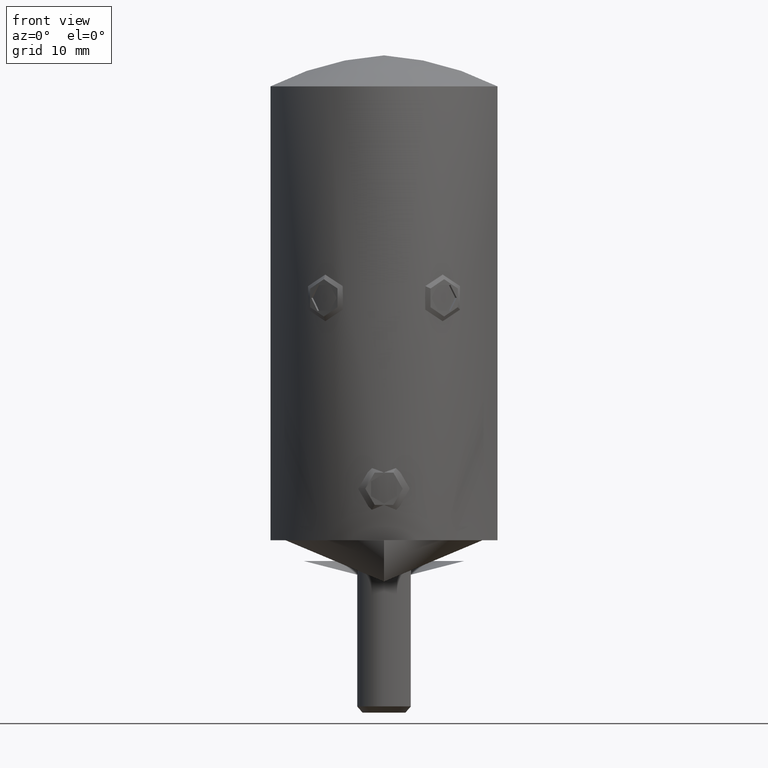
[diagram: clean part render]
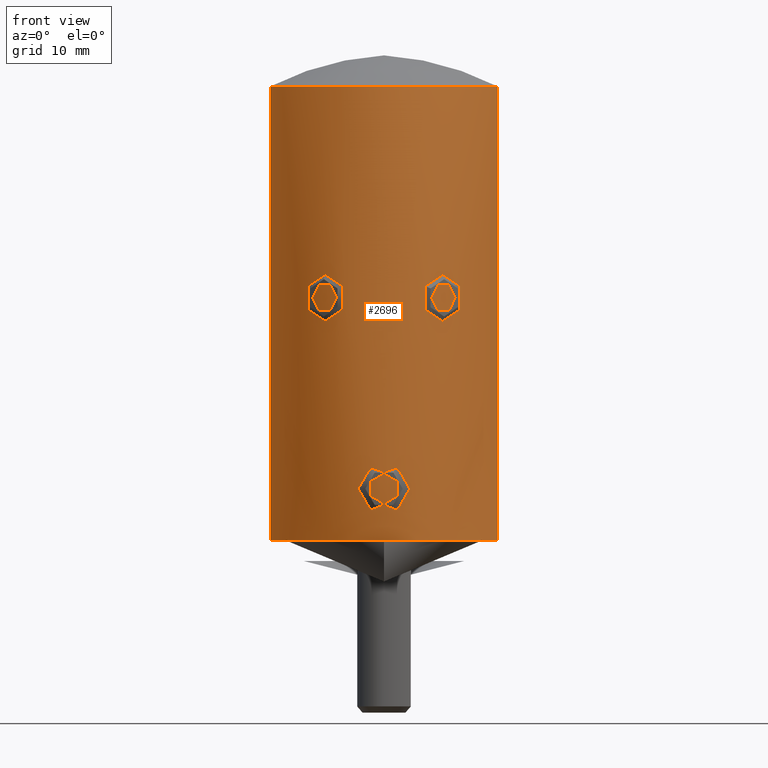
[diagram: same view with one face highlighted and labeled with its STEP entity id]
A machine part, front view. The second image highlights one B-rep face of the part: STEP entity #2696.
In plain terms, the highlighted cylindrical surface (partial cylindrical patch) has radius 11 mm, axis along (0, 0, 1).
Its self-contained STEP definition (entity closure, byte-faithful):
#122 = VECTOR ( 'NONE', #1411, 1000.000000000000000 ) ;
#220 = CARTESIAN_POINT ( 'NONE',  ( 7.561172679365780525, -7.989822004898798902, 22.28730717396087257 ) ) ;
#299 = CARTESIAN_POINT ( 'NONE',  ( 7.169889557207483222, -8.343046086140359918, 21.68007258375818580 ) ) ;
#318 = CARTESIAN_POINT ( 'NONE',  ( -9.473599840962538821, -5.592520689685467339, 20.82659574093291610 ) ) ;
#454 = CARTESIAN_POINT ( 'NONE',  ( 7.425485977138197136, -8.116079469822636838, 22.02587819796477575 ) ) ;
#481 = CARTESIAN_POINT ( 'NONE',  ( 1.893470199410739241, -10.83645095075712206, 6.594738271571696231 ) ) ;
#524 = CARTESIAN_POINT ( 'NONE',  ( 5.126284629233063939, -9.733679403188105539, 21.20864326718159987 ) ) ;
#556 = CARTESIAN_POINT ( 'NONE',  ( 9.996026330001591020, -4.597802995900677203, 18.08902729239647300 ) ) ;
#633 = EDGE_CURVE ( 'NONE', #10422, #9590, #19675, .T. ) ;
#636 = CARTESIAN_POINT ( 'NONE',  ( 9.268515488525329360, -5.925304606801424789, 22.25590857295209091 ) ) ;
#712 = CARTESIAN_POINT ( 'NONE',  ( 9.156399203532410880, -6.095947699353321703, 24.22077481556661027 ) ) ;
#786 = CARTESIAN_POINT ( 'NONE',  ( -10.19183751265292237, -4.145759157978439191, 17.23609329652746425 ) ) ;
#790 = CARTESIAN_POINT ( 'NONE',  ( 10.36683068439162625, -3.684211851886622036, 30.29007826215869059 ) ) ;
#850 = CARTESIAN_POINT ( 'NONE',  ( -5.548035723581857148, -9.499777870704122051, 21.10036188871868035 ) ) ;
#852 = CARTESIAN_POINT ( 'NONE',  ( 11.00000000000000000, 0.000000000000000000, 0.000000000000000000 ) ) ;
#867 = CARTESIAN_POINT ( 'NONE',  ( 10.95859947120640498, -0.9838684448568373320, 14.29336497675422102 ) ) ;
#942 = CARTESIAN_POINT ( 'NONE',  ( -10.93506435769343277, -1.214807806913861032, 14.37741290804189731 ) ) ;
#1060 = CARTESIAN_POINT ( 'NONE',  ( -9.397997172397694499, -5.717225328498642511, 27.39753572013948713 ) ) ;
#1116 = LINE ( 'NONE', #7931, #6016 ) ;
#1208 = CARTESIAN_POINT ( 'NONE',  ( -9.281883585321498487, -5.903502644170379732, 26.68170132992245769 ) ) ;
#1250 = CARTESIAN_POINT ( 'NONE',  ( -7.618544885495829533, -7.934854943584413789, 24.57324526187004565 ) ) ;
#1314 = EDGE_CURVE ( 'NONE', #16840, #2297, #16371, .T. ) ;
#1351 = CARTESIAN_POINT ( 'NONE',  ( -10.36679842674548091, -3.684352254798577864, 30.29002990219965241 ) ) ;
#1394 = CARTESIAN_POINT ( 'NONE',  ( -3.545061720958730955, -10.41309451578122669, 23.50000000000000000 ) ) ;
#1411 = DIRECTION ( 'NONE',  ( -0.000000000000000000, -0.000000000000000000, 1.000000000000000000 ) ) ;
#1457 = LINE ( 'NONE', #18378, #15074 ) ;
#1488 = CARTESIAN_POINT ( 'NONE',  ( 4.723918369463582678, -9.934956473674763089, 25.59595233828232708 ) ) ;
#1539 = CYLINDRICAL_SURFACE ( 'NONE', #1611, 10.99999999999999645 ) ;
#1556 = CARTESIAN_POINT ( 'NONE',  ( 3.545320702733750107, -10.41300634729819663, 23.81765462898348673 ) ) ;
#1561 = CARTESIAN_POINT ( 'NONE',  ( -2.495562452211262716, -10.71322910456391853, 4.683362971068643965 ) ) ;
#1611 = AXIS2_PLACEMENT_3D ( 'NONE', #8000, #20182, #21940 ) ;
#1634 = CARTESIAN_POINT ( 'NONE',  ( -2.430803093623571165, -10.72810763095610831, 5.628396886941443356 ) ) ;
#2059 = CARTESIAN_POINT ( 'NONE',  ( 2.495297978064271227, -10.71329013739203795, 4.682043413947125643 ) ) ;
#2180 = CARTESIAN_POINT ( 'NONE',  ( 6.501307959319777119, -8.874460939664617243, 21.20867836922007044 ) ) ;
#2292 = CARTESIAN_POINT ( 'NONE',  ( 10.43979944061768173, -3.468917546052637135, 16.23249284794687597 ) ) ;
#2297 = VERTEX_POINT ( 'NONE', #6674 ) ;
#2448 = CARTESIAN_POINT ( 'NONE',  ( 10.72101701489970793, -2.468618027424990480, 15.15792903129216640 ) ) ;
#2487 = CARTESIAN_POINT ( 'NONE',  ( 4.721090920942043745, -9.936299440259491078, 21.40577892336094123 ) ) ;
#2545 = CARTESIAN_POINT ( 'NONE',  ( 0.000000000000000000, 0.000000000000000000, 0.000000000000000000 ) ) ;
#2551 = AXIS2_PLACEMENT_3D ( 'NONE', #2545, #16592, #11030 ) ;
#2688 = CARTESIAN_POINT ( 'NONE',  ( -7.560285272163928205, -7.990662585836457943, 24.71466949281759540 ) ) ;
#2696 = ADVANCED_FACE ( 'NONE', ( #20042, #10258, #9714, #17883 ), #1539, .T. ) ;
#2734 = CARTESIAN_POINT ( 'NONE',  ( -4.355607442795515816, -10.10160472708712298, 21.68007258365323153 ) ) ;
#2831 = CARTESIAN_POINT ( 'NONE',  ( -7.805173626811875209, -7.751081515202911554, 23.50247619131340571 ) ) ;
#2855 = CARTESIAN_POINT ( 'NONE',  ( 10.99999999999999645, -1.613032863370915042E-15, 14.14600281952403371 ) ) ;
#2934 = CARTESIAN_POINT ( 'NONE',  ( -9.156734942247307885, -6.095426984534098480, 25.21871875238561600 ) ) ;
#2950 = EDGE_CURVE ( 'NONE', #3527, #10945, #22025, .T. ) ;
#3023 = ORIENTED_EDGE ( 'NONE', *, *, #4871, .T. ) ;
#3053 = CARTESIAN_POINT ( 'NONE',  ( -3.865003218402353724, -10.29904843937475079, 24.71000965126167870 ) ) ;
#3068 = B_SPLINE_CURVE_WITH_KNOTS ( 'NONE', 3,
 ( #9117, #21282, #21360, #10898, #220, #454, #7287, #299, #15995, #12664, #21206, #2180, #7666, #4296, #9429, #11281, #12743, #14480, #524, #18263, #2487, #3988, #19906, #19833, #21582, #7586, #11202, #14707, #12957, #4221 ),
 .UNSPECIFIED., .F., .F.,
 ( 4, 2, 2, 2, 2, 2, 2, 2, 2, 2, 2, 2, 2, 2, 4 ),
 ( 0.000000000000000000, 0.06250000000000052736, 0.09375000000000045797, 0.1250000000000003886, 0.1562500000000003053, 0.1875000000000002498, 0.2187500000000001665, 0.2500000000000001110, 0.2812500000000000555, 0.3124999999999999445, 0.3437499999999998890, 0.3749999999999998335, 0.4374999999999998890, 0.4687499999999999445, 0.5000000000000000000 ),
 .UNSPECIFIED. ) ;
#3081 = CARTESIAN_POINT ( 'NONE',  ( -10.08153054388151126, -4.417296773384427944, 29.67942414873581214 ) ) ;
#3124 = CARTESIAN_POINT ( 'NONE',  ( -5.123455516533243603, -9.735154540845735838, 25.79025270532844161 ) ) ;
#3194 = CARTESIAN_POINT ( 'NONE',  ( -7.346751575596345063, -8.187745515988181566, 25.09683115603854020 ) ) ;
#3212 = CARTESIAN_POINT ( 'NONE',  ( -2.382856163159521756, -10.73900133748870545, 5.779816620065284738 ) ) ;
#3267 = CARTESIAN_POINT ( 'NONE',  ( 7.805174582279883921, -7.751080553066904244, 23.50000000000000355 ) ) ;
#3287 = CARTESIAN_POINT ( 'NONE',  ( -2.430626934631324509, -10.72814813956289548, 4.370817171179566252 ) ) ;
#3357 = CARTESIAN_POINT ( 'NONE',  ( 3.610266569471289433, -10.39146630122696457, 24.13663394485504199 ) ) ;
#3489 = ORIENTED_EDGE ( 'NONE', *, *, #22293, .F. ) ;
#3494 = CARTESIAN_POINT ( 'NONE',  ( 5.690929114965480373, -9.414910090794451847, 25.91528120711132388 ) ) ;
#3527 = VERTEX_POINT ( 'NONE', #11686 ) ;
#3598 = EDGE_CURVE ( 'NONE', #17736, #16042, #21372, .T. ) ;
#3634 = CARTESIAN_POINT ( 'NONE',  ( 2.178857699642383849, -10.78245327803368880, 3.788117446808564548 ) ) ;
#3707 = CARTESIAN_POINT ( 'NONE',  ( 2.383584876163848509, -10.73884196754025311, 5.778017131772740456 ) ) ;
#3777 = CARTESIAN_POINT ( 'NONE',  ( 1.543890676010287732, -10.89363039259127319, 3.069276441871780392 ) ) ;
#3988 = CARTESIAN_POINT ( 'NONE',  ( 4.472313800651685156, -10.05072909389179436, 21.58066130423537388 ) ) ;
#4022 = CARTESIAN_POINT ( 'NONE',  ( 11.00000000000000178, -0.2519652550928412893, 14.14600281952404259 ) ) ;
#4127 = VERTEX_POINT ( 'NONE', #3267 ) ;
#4177 = CARTESIAN_POINT ( 'NONE',  ( 9.172980409928873868, -6.070968219877380001, 23.72548738927509859 ) ) ;
#4221 = CARTESIAN_POINT ( 'NONE',  ( 3.545063004570470522, -10.41309407878492799, 23.50247619131340571 ) ) ;
#4251 = CARTESIAN_POINT ( 'NONE',  ( -10.76398857083809979, -2.275499774362682803, 14.99907279001481264 ) ) ;
#4255 = CARTESIAN_POINT ( 'NONE',  ( 9.354779368371731962, -5.787300104866425876, 27.15975188956022279 ) ) ;
#4296 = CARTESIAN_POINT ( 'NONE',  ( 6.106245008730688539, -9.150969996466560730, 21.10036188870719442 ) ) ;
#4323 = CARTESIAN_POINT ( 'NONE',  ( -10.29294014991731743, -3.891896294933179679, 16.81813673376383633 ) ) ;
#4376 = ORIENTED_EDGE ( 'NONE', *, *, #3598, .F. ) ;
#4391 = CARTESIAN_POINT ( 'NONE',  ( -6.107397005281661961, -9.150183762977192714, 21.10060669162954028 ) ) ;
#4405 = CARTESIAN_POINT ( 'NONE',  ( -9.402351056604709711, -5.710387033262661838, 21.30469601768611199 ) ) ;
#4473 = CARTESIAN_POINT ( 'NONE',  ( -4.039565103524128453, -10.23183765173914139, 22.02587819793881962 ) ) ;
#4754 = CARTESIAN_POINT ( 'NONE',  ( -10.99999999999999822, -0.5014577260992743035, 31.39940828047583921 ) ) ;
#4759 = CARTESIAN_POINT ( 'NONE',  ( -7.805173626811875209, -7.751081515202911554, 23.50247619131340571 ) ) ;
#4791 = EDGE_CURVE ( 'NONE', #9786, #5450, #12141, .T. ) ;
#4804 = CARTESIAN_POINT ( 'NONE',  ( -4.717684471916573585, -9.941608254181751647, 25.60877344002772560 ) ) ;
#4871 = EDGE_CURVE ( 'NONE', #10712, #4127, #15265, .T. ) ;
#4973 = CARTESIAN_POINT ( 'NONE',  ( -1.543197030307336348, -10.89377639713939772, 6.931762059575705237 ) ) ;
#5045 = CARTESIAN_POINT ( 'NONE',  ( -1.996185883738286648, -10.81775451556606527, 6.474240922415234856 ) ) ;
#5110 = CARTESIAN_POINT ( 'NONE',  ( 6.107296624452888345, -9.150255390473915895, 25.89942136833898445 ) ) ;
#5450 = VERTEX_POINT ( 'NONE', #2855 ) ;
#5566 = CARTESIAN_POINT ( 'NONE',  ( 0.002621827913309107781, -10.99999968754628199, 7.415153783528244169 ) ) ;
#5584 = EDGE_CURVE ( 'NONE', #2297, #16840, #9551, .T. ) ;
#5714 = CARTESIAN_POINT ( 'NONE',  ( 0.6619940357764623196, -10.98427163760045389, 7.351015105423833518 ) ) ;
#5801 = CARTESIAN_POINT ( 'NONE',  ( 0.1643935056462921263, -10.99999999999999822, 2.584844886136884679 ) ) ;
#5954 = CARTESIAN_POINT ( 'NONE',  ( 9.732232187159731041, -5.128920919710665771, 28.72184896973481827 ) ) ;
#6016 = VECTOR ( 'NONE', #7793, 1000.000000000000000 ) ;
#6017 = CARTESIAN_POINT ( 'NONE',  ( -7.436173316839094660, -8.109199354684921701, 22.01615640568176246 ) ) ;
#6035 = CARTESIAN_POINT ( 'NONE',  ( 9.185728301568172327, -6.051719503376332909, 23.47940804356965216 ) ) ;
#6123 = CARTESIAN_POINT ( 'NONE',  ( 9.549032377428089191, -5.461755952810698922, 28.07814574253253426 ) ) ;
#6180 = CARTESIAN_POINT ( 'NONE',  ( -6.501357824642585825, -8.874438306724446335, 21.20864326726529825 ) ) ;
#6194 = CARTESIAN_POINT ( 'NONE',  ( -10.44166798045407596, -3.463298747008933809, 16.22513325797718764 ) ) ;
#6305 = CARTESIAN_POINT ( 'NONE',  ( -10.96587584406541893, -0.9923969674564595556, 31.34738274521572876 ) ) ;
#6323 = CARTESIAN_POINT ( 'NONE',  ( -4.139399588683989606, -10.19210995345161486, 21.90222231638175288 ) ) ;
#6350 = CARTESIAN_POINT ( 'NONE',  ( -7.804981806833573899, -7.751274673826359596, 23.81765462891433671 ) ) ;
#6592 = CARTESIAN_POINT ( 'NONE',  ( -1.533328306782185457, -10.89347143111960747, 3.080631269952765372 ) ) ;
#6600 = CARTESIAN_POINT ( 'NONE',  ( -9.543942195733455591, -5.472589204515950989, 28.08684565289690482 ) ) ;
#6674 = CARTESIAN_POINT ( 'NONE',  ( -1.877695347284969308E-15, -10.99999999999999645, 2.584844900694840852 ) ) ;
#6780 = CARTESIAN_POINT ( 'NONE',  ( -3.791161425055119771, -10.32624101775202341, 24.57151056503725073 ) ) ;
#6795 = CARTESIAN_POINT ( 'NONE',  ( 5.267424675922499411, -9.658170671119631123, 25.83795955607490669 ) ) ;
#6797 = ORIENTED_EDGE ( 'NONE', *, *, #2950, .T. ) ;
#6800 = CARTESIAN_POINT ( 'NONE',  ( -0.8104466577886553225, -10.97117418873913941, 7.291497780577482324 ) ) ;
#6874 = CARTESIAN_POINT ( 'NONE',  ( 6.867361557353961032, -8.598340926990177380, 25.60877344002775402 ) ) ;
#7029 = CARTESIAN_POINT ( 'NONE',  ( 0.002621827913309107781, -10.99999968754628199, 7.415153783528244169 ) ) ;
#7260 = ORIENTED_EDGE ( 'NONE', *, *, #17030, .F. ) ;
#7287 = CARTESIAN_POINT ( 'NONE',  ( 7.346014400583698922, -8.188394634141163309, 21.90222231627681282 ) ) ;
#7314 = CARTESIAN_POINT ( 'NONE',  ( 1.998357958352855901, -10.81735236367632957, 6.471525135745544333 ) ) ;
#7373 = CARTESIAN_POINT ( 'NONE',  ( -3.609331322611783133, -10.39179767779888230, 22.86600142990673845 ) ) ;
#7545 = CARTESIAN_POINT ( 'NONE',  ( 9.718334420191718337, -5.156983217115807427, 19.42578496535836408 ) ) ;
#7586 = CARTESIAN_POINT ( 'NONE',  ( 3.669692313996829380, -10.37003170988661793, 22.72097590641497433 ) ) ;
#7666 = CARTESIAN_POINT ( 'NONE',  ( 6.374260514340745587, -8.966341666376324682, 21.16277964139386114 ) ) ;
#7697 = CARTESIAN_POINT ( 'NONE',  ( 9.251613099835378051, -5.950594844368698233, 26.43808687914244260 ) ) ;
#7752 = CARTESIAN_POINT ( 'NONE',  ( -7.073002140894162793, -8.425638656219753386, 21.58066130417819295 ) ) ;
#7762 = CARTESIAN_POINT ( 'NONE',  ( -10.84073496705684825, -1.876116880764274741, 14.71792350598956212 ) ) ;
#7767 = CARTESIAN_POINT ( 'NONE',  ( 10.48929323941067082, -3.317025603215281837, 16.03878005461849909 ) ) ;
#7793 = DIRECTION ( 'NONE',  ( -0.000000000000000000, -0.000000000000000000, 1.000000000000000000 ) ) ;
#7842 = CARTESIAN_POINT ( 'NONE',  ( 9.494849601237005388, -5.554889612239378494, 27.85512042307930258 ) ) ;
#7845 = ORIENTED_EDGE ( 'NONE', *, *, #20671, .F. ) ;
#7862 = CARTESIAN_POINT ( 'NONE',  ( 10.99999999999999645, -6.157719887952269557E-18, 31.39940828047582144 ) ) ;
#7931 = CARTESIAN_POINT ( 'NONE',  ( -10.99999999999999645, 1.347111479062088010E-15, 47.00000000000000000 ) ) ;
#7968 = CARTESIAN_POINT ( 'NONE',  ( -6.861096738111355009, -8.599075392189309497, 21.40577892341810795 ) ) ;
#8000 = CARTESIAN_POINT ( 'NONE',  ( 0.000000000000000000, 0.000000000000000000, 47.00000000000000000 ) ) ;
#8094 = CARTESIAN_POINT ( 'NONE',  ( -10.86843869134571250, -1.713435614366019655, 31.19106142685406624 ) ) ;
#8168 = CARTESIAN_POINT ( 'NONE',  ( -9.169056902621067096, -6.077172383613070217, 23.72684320214824183 ) ) ;
#8219 = CARTESIAN_POINT ( 'NONE',  ( -6.858650215871860745, -8.601027968299503002, 25.59595233824003202 ) ) ;
#8294 = CARTESIAN_POINT ( 'NONE',  ( -5.967326013728555090, -9.242198139794650658, 25.91528120711718586 ) ) ;
#8316 = CARTESIAN_POINT ( 'NONE',  ( -0.6530340314928892997, -10.98180644577007037, 7.337544000688740020 ) ) ;
#8325 = CARTESIAN_POINT ( 'NONE',  ( -10.82784448843477065, -1.952865275514410470, 31.12507027151094618 ) ) ;
#8389 = CARTESIAN_POINT ( 'NONE',  ( -2.511703974928262806, -10.70940442520010016, 4.842739291575817617 ) ) ;
#8399 = CARTESIAN_POINT ( 'NONE',  ( 3.545063004570470522, -10.41309407878492799, 23.50247619131340571 ) ) ;
#8540 = CARTESIAN_POINT ( 'NONE',  ( -1.892943344138700468, -10.83654561251813853, 6.595331397874538482 ) ) ;
#8762 = CARTESIAN_POINT ( 'NONE',  ( 7.805226028912484182, -7.751028747393313267, 23.81562291544708287 ) ) ;
#9043 = ORIENTED_EDGE ( 'NONE', *, *, #1314, .T. ) ;
#9049 = CARTESIAN_POINT ( 'NONE',  ( -9.897646929197605914, -4.824942360906620209, 18.51753303126746175 ) ) ;
#9117 = CARTESIAN_POINT ( 'NONE',  ( 7.805174582279883921, -7.751080553066904244, 23.50000000000000355 ) ) ;
#9146 = CARTESIAN_POINT ( 'NONE',  ( 1.535022905134126647, -10.89323192799055739, 6.918116975740232988 ) ) ;
#9217 = CARTESIAN_POINT ( 'NONE',  ( 2.495530447803820717, -10.71323517469552300, 5.316057407631480380 ) ) ;
#9235 = LINE ( 'NONE', #21724, #11732 ) ;
#9252 = DIRECTION ( 'NONE',  ( -0.000000000000000000, -0.000000000000000000, 1.000000000000000000 ) ) ;
#9299 = CARTESIAN_POINT ( 'NONE',  ( 10.19129927505127320, -4.147017466268721364, 17.23842105529820401 ) ) ;
#9429 = CARTESIAN_POINT ( 'NONE',  ( 5.968281494608387305, -9.241571220430506273, 21.08483023268387058 ) ) ;
#9441 = CARTESIAN_POINT ( 'NONE',  ( 10.99999999999999289, 0.000000000000000000, 44.00000000000000000 ) ) ;
#9464 = CARTESIAN_POINT ( 'NONE',  ( 10.73861026526338236, -2.425564938465545328, 30.97977864627793920 ) ) ;
#9533 = CARTESIAN_POINT ( 'NONE',  ( 0.6509923734749830659, -10.98190638562723009, 2.662025886934126007 ) ) ;
#9539 = CARTESIAN_POINT ( 'NONE',  ( 10.76371629460333423, -2.276866364409302790, 15.00007257094141444 ) ) ;
#9551 = B_SPLINE_CURVE_WITH_KNOTS ( 'NONE', 3,
 ( #13703, #18844, #12092, #17116, #18922, #6592, #10244, #20576, #22464, #22244, #10168, #15581, #3287, #1561, #8389, #18987, #20504, #1634, #3212, #10398, #18768, #5045, #8540, #4973, #22387, #6800, #8316, #13779, #13633, #13859 ),
 .UNSPECIFIED., .F., .F.,
 ( 4, 2, 2, 2, 2, 2, 2, 2, 2, 2, 2, 2, 2, 2, 4 ),
 ( 0.000000000000000000, 0.06249999999999979183, 0.09374999999999969469, 0.1249999999999995837, 0.1562499999999994726, 0.1874999999999993894, 0.2187499999999994449, 0.2499999999999995004, 0.2812499999999995559, 0.3124999999999996114, 0.3437499999999996669, 0.3749999999999997224, 0.4374999999999998890, 0.4687499999999999445, 0.5000000000000000000 ),
 .UNSPECIFIED. ) ;
#9590 = VERTEX_POINT ( 'NONE', #19191 ) ;
#9616 = CARTESIAN_POINT ( 'NONE',  ( -10.72208490730656472, -2.463954307759062434, 15.15396610578907222 ) ) ;
#9620 = CARTESIAN_POINT ( 'NONE',  ( 9.397807185784358808, -5.717533353911916194, 27.39649446914843267 ) ) ;
#9675 = CARTESIAN_POINT ( 'NONE',  ( -7.793681161086207787, -7.762708218601382271, 23.18513662161121758 ) ) ;
#9714 = FACE_BOUND ( 'NONE', #21855, .T. ) ;
#9744 = CARTESIAN_POINT ( 'NONE',  ( -4.472066354762890938, -10.05085535444461797, 21.58076750938683475 ) ) ;
#9786 = VERTEX_POINT ( 'NONE', #852 ) ;
#9800 = CARTESIAN_POINT ( 'NONE',  ( -9.935765379171215272, -4.729709957007818488, 29.32436188056976434 ) ) ;
#9817 = CARTESIAN_POINT ( 'NONE',  ( -5.689946788221104335, -9.415494048024594775, 21.08483023268386702 ) ) ;
#9847 = CARTESIAN_POINT ( 'NONE',  ( -7.757151347546926701, -7.800205097522365350, 24.13663394498376036 ) ) ;
#10035 = CARTESIAN_POINT ( 'NONE',  ( -10.73393519092948623, -2.416305934057781268, 30.96758613150306871 ) ) ;
#10075 = CARTESIAN_POINT ( 'NONE',  ( -4.137386364257516824, -10.19292499362709314, 25.09543569689554943 ) ) ;
#10168 = CARTESIAN_POINT ( 'NONE',  ( -2.257482614959126721, -10.76605286276670270, 3.929546619571035126 ) ) ;
#10221 = CARTESIAN_POINT ( 'NONE',  ( -5.687535236479453360, -9.416960716874086756, 25.91502748698403735 ) ) ;
#10232 = CIRCLE ( 'NONE', #2551, 11.00000000000000000 ) ;
#10238 = CARTESIAN_POINT ( 'NONE',  ( 6.374115018080872552, -8.966432038789262648, 25.83722599155058930 ) ) ;
#10244 = CARTESIAN_POINT ( 'NONE',  ( -1.661524859630270301, -10.87442308525898582, 3.181962713572087598 ) ) ;
#10258 = FACE_BOUND ( 'NONE', #15238, .T. ) ;
#10297 = CARTESIAN_POINT ( 'NONE',  ( -6.105894110329868063, -9.151179188630644390, 25.89959423357452195 ) ) ;
#10308 = EDGE_LOOP ( 'NONE', ( #15575, #17181 ) ) ;
#10316 = CARTESIAN_POINT ( 'NONE',  ( 7.805174582279883921, -7.751080553066904244, 23.50000000000000355 ) ) ;
#10390 = CARTESIAN_POINT ( 'NONE',  ( 7.757978377606393749, -7.799384945154917759, 24.13318355611280808 ) ) ;
#10398 = CARTESIAN_POINT ( 'NONE',  ( -2.256864148904717648, -10.76618397735613897, 6.071739856479851483 ) ) ;
#10408 = EDGE_LOOP ( 'NONE', ( #3489, #12306, #21456, #7260, #19304, #4376, #7845, #6797 ) ) ;
#10422 = VERTEX_POINT ( 'NONE', #4759 ) ;
#10468 = CARTESIAN_POINT ( 'NONE',  ( 3.545063004570470522, -10.41309407878492799, 23.50247619131340571 ) ) ;
#10687 = CARTESIAN_POINT ( 'NONE',  ( 1.263044276292241586, -10.92810671216221330, 7.093506342103812479 ) ) ;
#10706 = DIRECTION ( 'NONE',  ( -0.000000000000000000, -0.000000000000000000, 1.000000000000000000 ) ) ;
#10712 = VERTEX_POINT ( 'NONE', #8399 ) ;
#10770 = CARTESIAN_POINT ( 'NONE',  ( 0.3311095054343894950, -10.99992139316568718, 7.414830767907124809 ) ) ;
#10839 = CARTESIAN_POINT ( 'NONE',  ( -10.63323463236587862, -2.822852607429334970, 15.48686999702419698 ) ) ;
#10849 = CARTESIAN_POINT ( 'NONE',  ( 1.660782927757288752, -10.87454360748492732, 6.818738680896125892 ) ) ;
#10898 = CARTESIAN_POINT ( 'NONE',  ( 7.618695975549895749, -7.934712000149276356, 22.42702881916842372 ) ) ;
#10911 = CARTESIAN_POINT ( 'NONE',  ( -3.866604510448233167, -10.29844442219008727, 22.28730717398680383 ) ) ;
#10945 = VERTEX_POINT ( 'NONE', #16275 ) ;
#10987 = CARTESIAN_POINT ( 'NONE',  ( -3.545061720958730955, -10.41309451578122669, 23.50000000000000000 ) ) ;
#11001 = CARTESIAN_POINT ( 'NONE',  ( 2.430721202019296978, -10.72812621128811195, 4.371317447606087647 ) ) ;
#11005 = CARTESIAN_POINT ( 'NONE',  ( 9.631519731208600277, -5.315944351683327795, 19.88761584533628124 ) ) ;
#11030 = DIRECTION ( 'NONE',  ( 1.000000000000000000, 0.000000000000000000, 0.000000000000000000 ) ) ;
#11082 = CARTESIAN_POINT ( 'NONE',  ( -1.877695347284969308E-15, -10.99999999999999645, 2.584844900694840852 ) ) ;
#11086 = CARTESIAN_POINT ( 'NONE',  ( 10.87546595887654632, -1.665662659555589009, 14.59208194115111112 ) ) ;
#11144 = CARTESIAN_POINT ( 'NONE',  ( -3.545131718512484209, -10.41307068562699456, 23.18034840471058544 ) ) ;
#11202 = CARTESIAN_POINT ( 'NONE',  ( 3.623387571030210363, -10.38615267738330949, 22.87210132428354115 ) ) ;
#11229 = CARTESIAN_POINT ( 'NONE',  ( -9.710582549426431953, -5.177462022628181337, 19.41762332468742969 ) ) ;
#11235 = CARTESIAN_POINT ( 'NONE',  ( 10.56379577902985645, -3.075141893300887830, 30.66727140928966122 ) ) ;
#11281 = CARTESIAN_POINT ( 'NONE',  ( 5.689463253177051705, -9.415786239710536520, 21.08485959924697895 ) ) ;
#11295 = CARTESIAN_POINT ( 'NONE',  ( -5.264602615271450681, -9.659732878611981377, 21.16277964138235390 ) ) ;
#11314 = CARTESIAN_POINT ( 'NONE',  ( 10.93426773699784604, -1.221466730520445632, 14.38027336471709994 ) ) ;
#11446 = CARTESIAN_POINT ( 'NONE',  ( -4.855665494566325791, -9.871452515029023544, 21.32930433187538810 ) ) ;
#11523 = CARTESIAN_POINT ( 'NONE',  ( -5.126326831067308909, -9.733644506179283340, 21.20867836916423244 ) ) ;
#11686 = CARTESIAN_POINT ( 'NONE',  ( -10.99999999999999645, -3.162245699594417071E-16, 31.39940828047582499 ) ) ;
#11732 = VECTOR ( 'NONE', #9252, 1000.000000000000000 ) ;
#11780 = CARTESIAN_POINT ( 'NONE',  ( -6.371619301521098677, -8.968193291040915227, 25.83795955607796557 ) ) ;
#11852 = CARTESIAN_POINT ( 'NONE',  ( -3.609166875331112578, -10.39185009977212459, 24.13318355608095800 ) ) ;
#11996 = CARTESIAN_POINT ( 'NONE',  ( -3.544992605608412006, -10.41311804559576792, 23.81562291544152998 ) ) ;
#12092 = CARTESIAN_POINT ( 'NONE',  ( -0.6586619931417231344, -10.98452728325522720, 2.647857589405006262 ) ) ;
#12141 = LINE ( 'NONE', #17038, #122 ) ;
#12306 = ORIENTED_EDGE ( 'NONE', *, *, #14396, .T. ) ;
#12483 = CARTESIAN_POINT ( 'NONE',  ( 0.000000000000000000, 0.000000000000000000, 44.00000000000000000 ) ) ;
#12529 = CARTESIAN_POINT ( 'NONE',  ( -10.49064334275274568, -3.312741329978629246, 16.03352738035111003 ) ) ;
#12540 = CARTESIAN_POINT ( 'NONE',  ( 2.256830909742722824, -10.76619328781119300, 6.071927192355250469 ) ) ;
#12543 = CARTESIAN_POINT ( 'NONE',  ( 10.99999999999999822, -0.2495468869992590599, 31.39940828047583210 ) ) ;
#12603 = CARTESIAN_POINT ( 'NONE',  ( -10.95871493289263299, -0.9824078860718443718, 14.29295309061734187 ) ) ;
#12664 = CARTESIAN_POINT ( 'NONE',  ( 6.859476513185624569, -8.600386782140228448, 21.40451927381299413 ) ) ;
#12698 = VERTEX_POINT ( 'NONE', #16909 ) ;
#12709 = DIRECTION ( 'NONE',  ( 1.000000000000000000, 0.000000000000000000, 0.000000000000000000 ) ) ;
#12743 = CARTESIAN_POINT ( 'NONE',  ( 5.546824059578575827, -9.500468616254940102, 21.10060669163863523 ) ) ;
#12770 = CARTESIAN_POINT ( 'NONE',  ( 2.381829622729973561, -10.73922843645344827, 4.217404884549844191 ) ) ;
#12773 = CARTESIAN_POINT ( 'NONE',  ( 10.29106834762205125, -3.896808626440960488, 16.82578635361685215 ) ) ;
#12910 = CARTESIAN_POINT ( 'NONE',  ( 9.179988342886433728, -6.060982579414075033, 25.70855004478481831 ) ) ;
#12957 = CARTESIAN_POINT ( 'NONE',  ( 3.544934155488831617, -10.41313794452829278, 23.34488697247837408 ) ) ;
#12992 = CARTESIAN_POINT ( 'NONE',  ( 9.667481184334757671, -5.249248039840224145, 28.51082364398958546 ) ) ;
#13064 = CARTESIAN_POINT ( 'NONE',  ( 10.63186448416784380, -2.828027296435997595, 15.49204297359294991 ) ) ;
#13376 = ORIENTED_EDGE ( 'NONE', *, *, #5584, .T. ) ;
#13411 = CARTESIAN_POINT ( 'NONE',  ( -9.180215329875196062, -6.060640059761963627, 25.71182706151101982 ) ) ;
#13494 = CARTESIAN_POINT ( 'NONE',  ( -10.50108648005596912, -3.282094437489234462, 30.55143786695226993 ) ) ;
#13571 = CARTESIAN_POINT ( 'NONE',  ( -10.29566045163969967, -3.877733627698563001, 30.14505838312670960 ) ) ;
#13633 = CARTESIAN_POINT ( 'NONE',  ( -0.1616220108472313788, -11.00003883473658028, 7.415315291338803405 ) ) ;
#13696 = CARTESIAN_POINT ( 'NONE',  ( 5.548377568053958875, -9.499554189082150657, 25.89959423357754531 ) ) ;
#13703 = CARTESIAN_POINT ( 'NONE',  ( -1.877695347284969308E-15, -10.99999999999999645, 2.584844900694840852 ) ) ;
#13774 = CARTESIAN_POINT ( 'NONE',  ( 7.347629493484974184, -8.186942449983181547, 25.09543569683471986 ) ) ;
#13779 = CARTESIAN_POINT ( 'NONE',  ( -0.3276201266748411389, -10.99632626431402294, 7.399832416810085078 ) ) ;
#13837 = CARTESIAN_POINT ( 'NONE',  ( -4.461155431945654115, -10.05747660317583758, 25.42891471461487285 ) ) ;
#13859 = CARTESIAN_POINT ( 'NONE',  ( 0.002621827913309107781, -10.99999968754628199, 7.415153783528244169 ) ) ;
#14004 = CARTESIAN_POINT ( 'NONE',  ( 4.854478602979664714, -9.872058676099102925, 25.67017007462327527 ) ) ;
#14143 = CARTESIAN_POINT ( 'NONE',  ( 2.256039582244638630, -10.76635616935413253, 3.926755654150001273 ) ) ;
#14214 = ORIENTED_EDGE ( 'NONE', *, *, #17846, .T. ) ;
#14218 = CARTESIAN_POINT ( 'NONE',  ( 10.99999999999999645, -6.157719887952269557E-18, 31.39940828047582144 ) ) ;
#14290 = CARTESIAN_POINT ( 'NONE',  ( 1.995493121734515318, -10.81788920119727138, 3.524738894744670503 ) ) ;
#14396 = EDGE_CURVE ( 'NONE', #12698, #9786, #10232, .T. ) ;
#14480 = CARTESIAN_POINT ( 'NONE',  ( 5.265096904096317587, -9.659446964854678797, 21.16269285541460476 ) ) ;
#14513 = CARTESIAN_POINT ( 'NONE',  ( 10.99132887674610615, -0.4995888412661538824, 14.17673576610862618 ) ) ;
#14596 = CARTESIAN_POINT ( 'NONE',  ( 9.281608931760766623, -5.903937260215353255, 26.67978181148476224 ) ) ;
#14707 = CARTESIAN_POINT ( 'NONE',  ( 3.560550981725924213, -10.40786153032136063, 23.18513662173922540 ) ) ;
#14732 = CARTESIAN_POINT ( 'NONE',  ( 0.3284569030097624354, -10.99628005262997910, 2.600367236531726078 ) ) ;
#14737 = CARTESIAN_POINT ( 'NONE',  ( 10.08068197055299819, -4.419366348462880900, 29.67753133756049522 ) ) ;
#14749 = VERTEX_POINT ( 'NONE', #7862 ) ;
#15016 = CARTESIAN_POINT ( 'NONE',  ( -4.722979850241534550, -9.935418067277437260, 21.40451927378944674 ) ) ;
#15074 = VECTOR ( 'NONE', #20241, 1000.000000000000000 ) ;
#15187 = CARTESIAN_POINT ( 'NONE',  ( -7.424473110163734901, -8.117006898706009110, 24.97580249680648734 ) ) ;
#15238 = EDGE_LOOP ( 'NONE', ( #13376, #9043 ) ) ;
#15265 = B_SPLINE_CURVE_WITH_KNOTS ( 'NONE', 3,
 ( #10468, #1556, #3357, #15576, #18918, #15432, #15657, #20944, #20871, #1488, #14004, #17327, #6795, #13696, #3494, #19056, #5110, #10238, #15503, #6874, #15732, #13774, #17401, #20797, #19206, #10390, #8762, #10316 ),
 .UNSPECIFIED., .F., .F.,
 ( 4, 2, 2, 2, 2, 2, 2, 2, 2, 2, 2, 2, 2, 4 ),
 ( 0.5000000000000000000, 0.5624999999999992228, 0.5937499999999992228, 0.6249999999999992228, 0.6562499999999993339, 0.6874999999999993339, 0.7187499999999993339, 0.7499999999999993339, 0.7812499999999993339, 0.8124999999999993339, 0.8749999999999988898, 0.9062499999999991118, 0.9374999999999991118, 1.000000000000000000 ),
 .UNSPECIFIED. ) ;
#15432 = CARTESIAN_POINT ( 'NONE',  ( 4.040842682836158772, -10.23133385095892756, 24.97580249696031629 ) ) ;
#15503 = CARTESIAN_POINT ( 'NONE',  ( 6.503923870808940855, -8.872542174978148566, 25.79025270532842384 ) ) ;
#15575 = ORIENTED_EDGE ( 'NONE', *, *, #21867, .T. ) ;
#15576 = CARTESIAN_POINT ( 'NONE',  ( 3.792050123249058213, -10.32591424576105688, 24.57324526193439596 ) ) ;
#15581 = CARTESIAN_POINT ( 'NONE',  ( -2.382999229834700028, -10.73896813810977946, 4.220662270624459644 ) ) ;
#15657 = CARTESIAN_POINT ( 'NONE',  ( 4.138493009041344095, -10.19248796723453765, 25.09683115607419168 ) ) ;
#15732 = CARTESIAN_POINT ( 'NONE',  ( 7.083958268925083956, -8.418567494270950746, 25.42891471473646448 ) ) ;
#15949 = CARTESIAN_POINT ( 'NONE',  ( 2.511799944583986033, -10.70938191707797849, 5.156688389980408793 ) ) ;
#15995 = CARTESIAN_POINT ( 'NONE',  ( 7.073224096298978303, -8.425471602283943540, 21.58076750936329091 ) ) ;
#16042 = VERTEX_POINT ( 'NONE', #9441 ) ;
#16149 = CARTESIAN_POINT ( 'NONE',  ( -10.99999999999999289, 1.347111479062087813E-15, 44.00000000000000000 ) ) ;
#16179 = CARTESIAN_POINT ( 'NONE',  ( 2.179889364275034769, -10.78223673683557315, 6.210013498346492966 ) ) ;
#16261 = CARTESIAN_POINT ( 'NONE',  ( 10.99999999999999645, -1.613032863370915042E-15, 14.14600281952403371 ) ) ;
#16275 = CARTESIAN_POINT ( 'NONE',  ( -10.99999999999999645, 1.347129800413888000E-15, 14.14600281952402128 ) ) ;
#16371 = B_SPLINE_CURVE_WITH_KNOTS ( 'NONE', 3,
 ( #5566, #10770, #5714, #21087, #10687, #9146, #10849, #481, #7314, #16179, #12540, #3707, #19636, #9217, #15949, #21387, #2059, #11001, #12770, #14143, #3634, #14290, #21231, #3777, #17761, #21686, #9533, #14732, #5801, #11082 ),
 .UNSPECIFIED., .F., .F.,
 ( 4, 2, 2, 2, 2, 2, 2, 2, 2, 2, 2, 2, 2, 2, 4 ),
 ( 0.5000000000000000000, 0.5624999999999998890, 0.5937499999999998890, 0.6249999999999998890, 0.6562499999999998890, 0.6874999999999998890, 0.7187499999999998890, 0.7499999999999998890, 0.7812499999999998890, 0.8124999999999998890, 0.8437499999999998890, 0.8749999999999998890, 0.9375000000000000000, 0.9687500000000000000, 1.000000000000000000 ),
 .UNSPECIFIED. ) ;
#16493 = CARTESIAN_POINT ( 'NONE',  ( 9.394268010509946976, -5.731446176849935625, 21.29840599393587297 ) ) ;
#16551 = CARTESIAN_POINT ( 'NONE',  ( -7.169969619447617681, -8.342990027515382323, 21.68006691387021689 ) ) ;
#16567 = CARTESIAN_POINT ( 'NONE',  ( 10.95794404639704922, -0.9920796746228286445, 31.33381976368522359 ) ) ;
#16592 = DIRECTION ( 'NONE',  ( -0.000000000000000000, -0.000000000000000000, 1.000000000000000000 ) ) ;
#16624 = CARTESIAN_POINT ( 'NONE',  ( -7.711835532702793650, -7.844220296498500389, 22.72097590632401065 ) ) ;
#16637 = CARTESIAN_POINT ( 'NONE',  ( -10.99999999999999289, -0.2476221471021927134, 14.14600281952402838 ) ) ;
#16698 = CARTESIAN_POINT ( 'NONE',  ( -7.805269536801024088, -7.750984935891188421, 23.34488697251294553 ) ) ;
#16757 = CARTESIAN_POINT ( 'NONE',  ( -10.99999999999999645, -3.162245699594417071E-16, 31.39940828047582499 ) ) ;
#16825 = CARTESIAN_POINT ( 'NONE',  ( -9.151198040853889992, -6.103736506717105215, 24.22079952748208953 ) ) ;
#16840 = VERTEX_POINT ( 'NONE', #7029 ) ;
#16909 = CARTESIAN_POINT ( 'NONE',  ( -10.99999999999999822, 1.347111479062088405E-15, 0.000000000000000000 ) ) ;
#17006 = B_SPLINE_CURVE_WITH_KNOTS ( 'NONE', 3,
 ( #10987, #11144, #7373, #21298, #10911, #4473, #6323, #2734, #9744, #15016, #11446, #11523, #11295, #850, #9817, #18357, #4391, #20225, #6180, #18500, #7968, #7752, #16551, #6017, #20147, #16624, #21909, #9675, #16698, #18280 ),
 .UNSPECIFIED., .F., .F.,
 ( 4, 2, 2, 2, 2, 2, 2, 2, 2, 2, 2, 2, 2, 2, 4 ),
 ( 0.000000000000000000, 0.06250000000000045797, 0.09375000000000038858, 0.1250000000000003886, 0.1562500000000003608, 0.1875000000000003331, 0.2187500000000003331, 0.2500000000000002776, 0.2812500000000002776, 0.3125000000000002776, 0.3437500000000002776, 0.3750000000000002776, 0.4375000000000001110, 0.4687500000000000555, 0.5000000000000000000 ),
 .UNSPECIFIED. ) ;
#17030 = EDGE_CURVE ( 'NONE', #14749, #5450, #22307, .T. ) ;
#17038 = CARTESIAN_POINT ( 'NONE',  ( 10.99999999999999645, 0.000000000000000000, 47.00000000000000000 ) ) ;
#17050 = CARTESIAN_POINT ( 'NONE',  ( -9.663857765110272169, -5.263026034808699016, 28.51942864110653630 ) ) ;
#17098 = CARTESIAN_POINT ( 'NONE',  ( -6.500053701613116353, -8.875404604142902443, 25.79194129288901394 ) ) ;
#17116 = CARTESIAN_POINT ( 'NONE',  ( -1.115993498445740029, -10.94431255611213238, 2.830513048300596246 ) ) ;
#17127 = EDGE_CURVE ( 'NONE', #14749, #16042, #1457, .T. ) ;
#17163 = CARTESIAN_POINT ( 'NONE',  ( -7.169343856186916497, -8.343527073118828241, 25.32063242528909441 ) ) ;
#17181 = ORIENTED_EDGE ( 'NONE', *, *, #633, .T. ) ;
#17233 = CARTESIAN_POINT ( 'NONE',  ( -5.546932442159912213, -9.500409793904257327, 25.89942136837608189 ) ) ;
#17327 = CARTESIAN_POINT ( 'NONE',  ( 5.127724821436193459, -9.732930862117440185, 25.79194129292848814 ) ) ;
#17401 = CARTESIAN_POINT ( 'NONE',  ( 7.426268274256823787, -8.115367407186235837, 24.97289511930770090 ) ) ;
#17736 = VERTEX_POINT ( 'NONE', #16149 ) ;
#17761 = CARTESIAN_POINT ( 'NONE',  ( 1.265772666320428064, -10.93117442413803708, 2.890181047733308972 ) ) ;
#17846 = EDGE_CURVE ( 'NONE', #4127, #10712, #3068, .T. ) ;
#17883 = FACE_BOUND ( 'NONE', #10308, .T. ) ;
#17991 = CARTESIAN_POINT ( 'NONE',  ( 10.29568834607458250, -3.877697571864470838, 30.14514275192497550 ) ) ;
#18142 = CARTESIAN_POINT ( 'NONE',  ( 9.156710212992040354, -6.095464100352852022, 25.21629309765377158 ) ) ;
#18221 = CARTESIAN_POINT ( 'NONE',  ( -10.99131598310265545, -0.4995309746274472218, 14.17678215877818992 ) ) ;
#18224 = CARTESIAN_POINT ( 'NONE',  ( 9.900462438095132711, -4.798056201855561476, 18.52714488524557268 ) ) ;
#18263 = CARTESIAN_POINT ( 'NONE',  ( 4.854168774312600299, -9.872201088635096156, 21.33002558959739048 ) ) ;
#18280 = CARTESIAN_POINT ( 'NONE',  ( -7.805173626811875209, -7.751081515202911554, 23.50247619131340571 ) ) ;
#18296 = CARTESIAN_POINT ( 'NONE',  ( 10.50059767142498046, -3.283602282751340695, 30.55050072601454403 ) ) ;
#18357 = CARTESIAN_POINT ( 'NONE',  ( -5.968756082567860055, -9.241264710416178474, 21.08485959924696829 ) ) ;
#18378 = CARTESIAN_POINT ( 'NONE',  ( 10.99999999999999645, 0.000000000000000000, 47.00000000000000000 ) ) ;
#18500 = CARTESIAN_POINT ( 'NONE',  ( -6.745148029873730522, -8.690586106758861007, 21.33002558951366368 ) ) ;
#18552 = AXIS2_PLACEMENT_3D ( 'NONE', #12483, #10706, #12709 ) ;
#18630 = CARTESIAN_POINT ( 'NONE',  ( -9.251907777510682607, -5.950137001418886129, 26.44060167831106867 ) ) ;
#18768 = CARTESIAN_POINT ( 'NONE',  ( -2.177980241880012713, -10.78262365602483186, 6.213167996627092293 ) ) ;
#18844 = CARTESIAN_POINT ( 'NONE',  ( -0.3315329495195907250, -10.99999999999999289, 2.584844930053911582 ) ) ;
#18899 = CARTESIAN_POINT ( 'NONE',  ( -7.070710384196105203, -8.427563085374723428, 25.42151148477987377 ) ) ;
#18918 = CARTESIAN_POINT ( 'NONE',  ( 3.867749033207075193, -10.29801531234704903, 24.71466949266376645 ) ) ;
#18922 = CARTESIAN_POINT ( 'NONE',  ( -1.261211241492135926, -10.92831925418233574, 2.905472548763628815 ) ) ;
#18987 = CARTESIAN_POINT ( 'NONE',  ( -2.511729057886794791, -10.70939854239877320, 5.157936335757355550 ) ) ;
#19056 = CARTESIAN_POINT ( 'NONE',  ( 5.970656882437384461, -9.240046677452882662, 25.91502748698987446 ) ) ;
#19191 = CARTESIAN_POINT ( 'NONE',  ( -3.545061720958730955, -10.41309451578122669, 23.50000000000000000 ) ) ;
#19206 = CARTESIAN_POINT ( 'NONE',  ( 7.619228165846834600, -7.934199434366115078, 24.57151056502131681 ) ) ;
#19304 = ORIENTED_EDGE ( 'NONE', *, *, #17127, .T. ) ;
#19636 = CARTESIAN_POINT ( 'NONE',  ( 2.431469541522517375, -10.72795581613280191, 5.625850491979974777 ) ) ;
#19675 = B_SPLINE_CURVE_WITH_KNOTS ( 'NONE', 3,
 ( #2831, #6350, #9847, #1250, #2688, #15187, #3194, #17163, #18899, #8219, #22292, #17098, #11780, #10297, #8294, #10221, #17233, #20480, #3124, #4804, #13837, #10075, #20625, #3053, #6780, #11852, #11996, #1394 ),
 .UNSPECIFIED., .F., .F.,
 ( 4, 2, 2, 2, 2, 2, 2, 2, 2, 2, 2, 2, 2, 4 ),
 ( 0.5000000000000000000, 0.5624999999999995559, 0.5937499999999996669, 0.6249999999999997780, 0.6562500000000000000, 0.6875000000000001110, 0.7187500000000002220, 0.7500000000000003331, 0.7812500000000004441, 0.8125000000000005551, 0.8750000000000008882, 0.9062500000000008882, 0.9375000000000006661, 1.000000000000000000 ),
 .UNSPECIFIED. ) ;
#19792 = CARTESIAN_POINT ( 'NONE',  ( 10.93313739207502877, -1.234929135000509604, 31.29486350151736929 ) ) ;
#19833 = CARTESIAN_POINT ( 'NONE',  ( 4.028696275426607798, -10.23842732515859311, 22.01615640593359302 ) ) ;
#19868 = CARTESIAN_POINT ( 'NONE',  ( 10.83582434760962521, -1.954247557910654409, 31.13872917111605787 ) ) ;
#19906 = CARTESIAN_POINT ( 'NONE',  ( 4.355521960640050594, -10.10165211207700686, 21.68006691374431938 ) ) ;
#19937 = CARTESIAN_POINT ( 'NONE',  ( -10.99999999999999645, 1.347129800413888000E-15, 14.14600281952402128 ) ) ;
#19943 = CARTESIAN_POINT ( 'NONE',  ( 10.58522211789766132, -2.996832365932811548, 15.66897255759937302 ) ) ;
#20014 = CARTESIAN_POINT ( 'NONE',  ( -9.235064815189408804, -5.976387414057344749, 22.74922716315580828 ) ) ;
#20019 = CARTESIAN_POINT ( 'NONE',  ( 9.152591237187900575, -6.101645661278766397, 24.47087926967417815 ) ) ;
#20042 = FACE_OUTER_BOUND ( 'NONE', #10408, .T. ) ;
#20147 = CARTESIAN_POINT ( 'NONE',  ( -7.572403671526342528, -7.979692977131421117, 22.28070653203713292 ) ) ;
#20182 = DIRECTION ( 'NONE',  ( -0.000000000000000000, -0.000000000000000000, 1.000000000000000000 ) ) ;
#20225 = CARTESIAN_POINT ( 'NONE',  ( -6.373786854775193689, -8.966660593903942100, 21.16269285542367129 ) ) ;
#20241 = DIRECTION ( 'NONE',  ( -0.000000000000000000, -0.000000000000000000, 1.000000000000000000 ) ) ;
#20480 = CARTESIAN_POINT ( 'NONE',  ( -5.264747622640602032, -9.659641724199618196, 25.83722599151350252 ) ) ;
#20504 = CARTESIAN_POINT ( 'NONE',  ( -2.495363705465146964, -10.71327480272936050, 5.317531738162812438 ) ) ;
#20514 = CARTESIAN_POINT ( 'NONE',  ( -10.68077503142536422, -2.640318671985238286, 30.87636742385612010 ) ) ;
#20576 = CARTESIAN_POINT ( 'NONE',  ( -1.892899697451231766, -10.83654340792173265, 3.404725381007292828 ) ) ;
#20625 = CARTESIAN_POINT ( 'NONE',  ( -4.038582169328935656, -10.23222862803731381, 24.97289511925500349 ) ) ;
#20671 = EDGE_CURVE ( 'NONE', #3527, #17736, #1116, .T. ) ;
#20797 = CARTESIAN_POINT ( 'NONE',  ( 7.562417526686486369, -7.988647556809546302, 24.71000965120895643 ) ) ;
#20871 = CARTESIAN_POINT ( 'NONE',  ( 4.475048106151569449, -10.04951289082196375, 25.42151148473758582 ) ) ;
#20944 = CARTESIAN_POINT ( 'NONE',  ( 4.356278970466030742, -10.10132510513251347, 25.32063242525341451 ) ) ;
#21087 = CARTESIAN_POINT ( 'NONE',  ( 1.116343252719576018, -10.94426300031695831, 7.169244775428248673 ) ) ;
#21206 = CARTESIAN_POINT ( 'NONE',  ( 6.743819097431885901, -8.691603196917165874, 21.32930433181956431 ) ) ;
#21223 = CARTESIAN_POINT ( 'NONE',  ( -10.58631334673217594, -2.992962176338224811, 15.66481509487884338 ) ) ;
#21231 = CARTESIAN_POINT ( 'NONE',  ( 1.890372269886347434, -10.83698242449020555, 3.402011649646412117 ) ) ;
#21282 = CARTESIAN_POINT ( 'NONE',  ( 7.805122478971226130, -7.751133019999434381, 23.18034840471059255 ) ) ;
#21298 = CARTESIAN_POINT ( 'NONE',  ( -3.791855412993424324, -10.32598738233422075, 22.42702881917441005 ) ) ;
#21360 = CARTESIAN_POINT ( 'NONE',  ( 7.757859172116178037, -7.799509769101240053, 22.86600142991873241 ) ) ;
#21372 = CIRCLE ( 'NONE', #18552, 10.99999999999999289 ) ;
#21387 = CARTESIAN_POINT ( 'NONE',  ( 2.511631889561120712, -10.70942133164946242, 4.839907027236585613 ) ) ;
#21456 = ORIENTED_EDGE ( 'NONE', *, *, #4791, .T. ) ;
#21540 = CARTESIAN_POINT ( 'NONE',  ( 9.935134642669448013, -4.730939886932004512, 29.32247421267228304 ) ) ;
#21582 = CARTESIAN_POINT ( 'NONE',  ( 3.852577257774878028, -10.30409849752618534, 22.28070653185525885 ) ) ;
#21606 = CARTESIAN_POINT ( 'NONE',  ( -9.283263599273574584, -5.902011725479058057, 22.26507300344912821 ) ) ;
#21614 = CARTESIAN_POINT ( 'NONE',  ( 10.99138456622760529, -0.5002250714047381530, 31.38610730047729191 ) ) ;
#21686 = CARTESIAN_POINT ( 'NONE',  ( 0.8106894968023071746, -10.97114265804650834, 2.708653337319289367 ) ) ;
#21690 = CARTESIAN_POINT ( 'NONE',  ( 10.84081443867489014, -1.875753506808886195, 14.71763004262934516 ) ) ;
#21724 = CARTESIAN_POINT ( 'NONE',  ( -10.99999999999999645, 1.347111479062088010E-15, 47.00000000000000000 ) ) ;
#21759 = CARTESIAN_POINT ( 'NONE',  ( -10.87572997435834488, -1.664298062090887598, 14.59112206390724786 ) ) ;
#21855 = EDGE_LOOP ( 'NONE', ( #14214, #3023 ) ) ;
#21867 = EDGE_CURVE ( 'NONE', #9590, #10422, #17006, .T. ) ;
#21909 = CARTESIAN_POINT ( 'NONE',  ( -7.746623625624999399, -7.809668836174816775, 22.87210132441156318 ) ) ;
#21940 = DIRECTION ( 'NONE',  ( 1.000000000000000000, 0.000000000000000000, 0.000000000000000000 ) ) ;
#21965 = CARTESIAN_POINT ( 'NONE',  ( -9.354794618527440875, -5.787272587873966145, 27.15973355881193285 ) ) ;
#22025 = B_SPLINE_CURVE_WITH_KNOTS ( 'NONE', 3,
 ( #16757, #4754, #6305, #8094, #8325, #10035, #20514, #22184, #13494, #1351, #13571, #3081, #9800, #17050, #6600, #1060, #21965, #1208, #18630, #13411, #2934, #16825, #8168, #20014, #21606, #4405, #318, #11229, #9049, #786, #4323, #6194, #12529, #21223, #10839, #9616, #4251, #7762, #21759, #942, #12603, #18221, #16637, #19937 ),
 .UNSPECIFIED., .F., .F.,
 ( 4, 2, 2, 2, 2, 2, 2, 2, 2, 2, 2, 2, 2, 2, 2, 2, 2, 2, 2, 2, 2, 4 ),
 ( 3.074338753397949728E-19, 0.001483315845811690459, 0.002224973768717534821, 0.002966631691623378315, 0.003708289614529222244, 0.004449947537435066172, 0.005933263383246752294, 0.007416579229058438416, 0.008158237151964281911, 0.008899895074870127140, 0.01038321092068182280, 0.01186652676649352020, 0.01334984261230521760, 0.01483315845811691673, 0.01779979014974032020, 0.01928310599555202454, 0.02002476391845787324, 0.02076642184136371846, 0.02150807976426956716, 0.02224973768717541586, 0.02299139561008126456, 0.02373305353298711326 ),
 .UNSPECIFIED. ) ;
#22184 = CARTESIAN_POINT ( 'NONE',  ( -10.56435491736843879, -3.073213813164757724, 30.66829279250938711 ) ) ;
#22244 = CARTESIAN_POINT ( 'NONE',  ( -2.179285043743967698, -10.78236625295122053, 3.788823220087998322 ) ) ;
#22292 = CARTESIAN_POINT ( 'NONE',  ( -6.744884210450216244, -8.690802149325165260, 25.67017007466277434 ) ) ;
#22293 = EDGE_CURVE ( 'NONE', #12698, #10945, #9235, .T. ) ;
#22307 = B_SPLINE_CURVE_WITH_KNOTS ( 'NONE', 3,
 ( #14218, #12543, #21614, #16567, #19792, #19868, #9464, #11235, #18296, #790, #17991, #14737, #21540, #5954, #12992, #6123, #7842, #9620, #4255, #14596, #7697, #12910, #18142, #20019, #712, #4177, #6035, #636, #16493, #11005, #7545, #18224, #556, #9299, #12773, #2292, #7767, #19943, #13064, #2448, #9539, #21690, #11086, #11314, #867, #14513, #4022, #16261 ),
 .UNSPECIFIED., .F., .F.,
 ( 4, 2, 2, 2, 2, 2, 2, 2, 2, 2, 2, 2, 2, 2, 2, 2, 2, 2, 2, 2, 2, 2, 2, 4 ),
 ( 0.02383190917546753468, 0.02457588803516112461, 0.02531986689485471453, 0.02680782461424189092, 0.02755180347393548085, 0.02829578233362906731, 0.02978374005301625063, 0.03052771891270984750, 0.03127169777240344090, 0.03201567663209703429, 0.03275965549179063463, 0.03424761321117782142, 0.03499159207087140788, 0.03573557093056500128, 0.03871148636933939569, 0.04019944408872659636, 0.04168740180811379703, 0.04317535952750099770, 0.04391933838719459804, 0.04466331724688819838, 0.04540729610658179177, 0.04615127496627539211, 0.04689525382596899244, 0.04763923268566259278 ),
 .UNSPECIFIED. ) ;
#22387 = CARTESIAN_POINT ( 'NONE',  ( -1.268443744331167577, -10.93091935413366578, 7.108644643574839606 ) ) ;
#22464 = CARTESIAN_POINT ( 'NONE',  ( -1.996072046942712008, -10.81778173647821184, 3.525478994928516574 ) ) ;